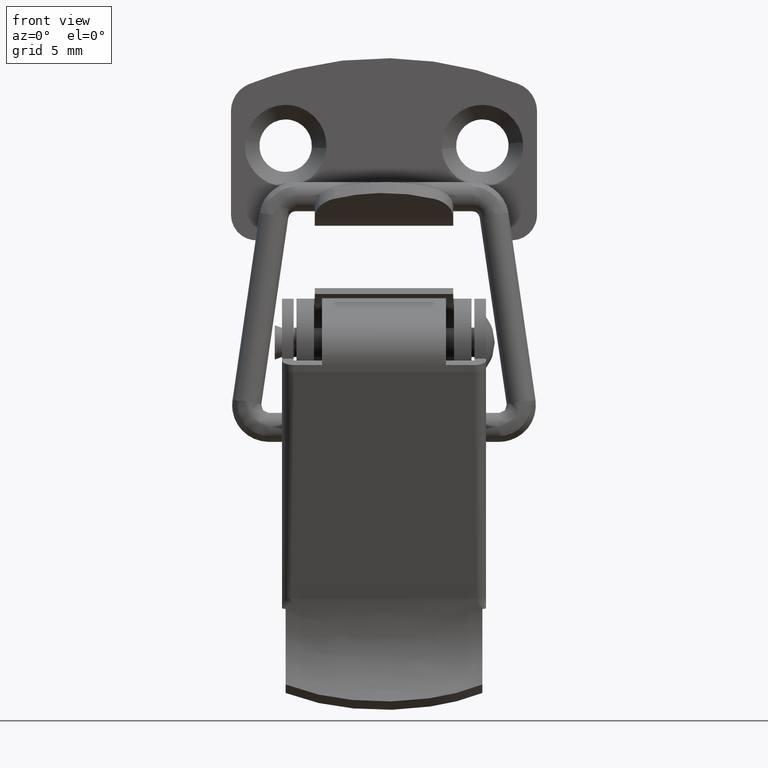
[diagram: clean part render]
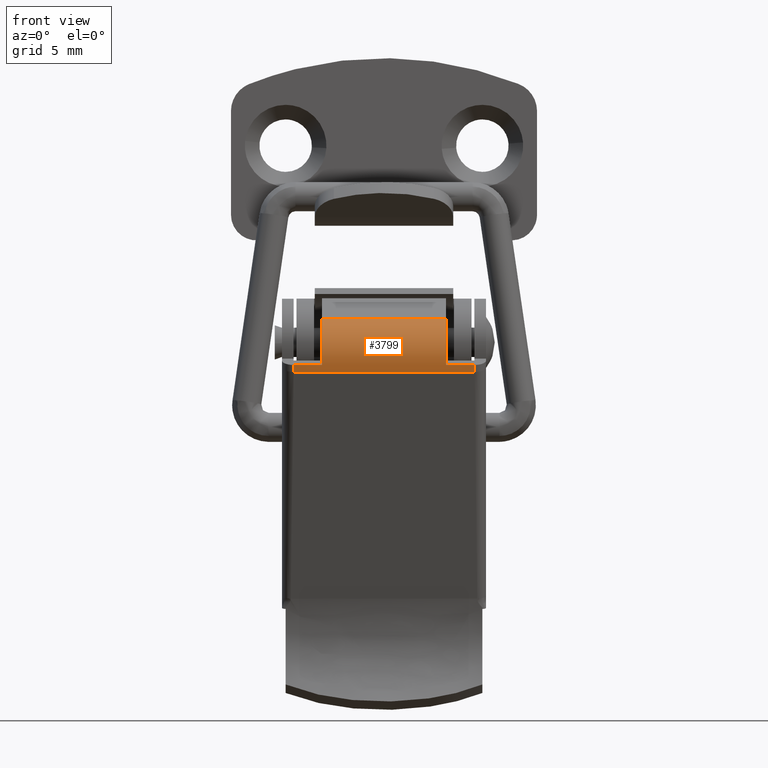
[diagram: same view with one face highlighted and labeled with its STEP entity id]
A machine part, front view. The second image highlights one B-rep face of the part: STEP entity #3799.
In plain terms, the highlighted face is a freeform B-spline surface patch.
Its self-contained STEP definition (entity closure, byte-faithful):
#2981=CARTESIAN_POINT('',(-4.656005322205810,4.250000000000000,-8.387027931961381));
#2982=VERTEX_POINT('',#2981);
#3017=CARTESIAN_POINT('',(-6.355976200046881,4.250000000000000,-11.547739721177900));
#3018=VERTEX_POINT('',#3017);
#3024=CARTESIAN_POINT('',(-4.656005322205807,4.250000000000000,-8.387027931961386));
#3025=CARTESIAN_POINT('',(-6.825346312411479,4.250000000000000,-9.257775939398552));
#3026=CARTESIAN_POINT('',(-6.355976200046852,4.250000000000000,-11.547739721177891));
#3034=(BOUNDED_CURVE()B_SPLINE_CURVE(2,(#3024,#3025,#3026),.UNSPECIFIED.,.F.,.U.)CURVE()GEOMETRIC_REPRESENTATION_ITEM()QUASI_UNIFORM_CURVE()RATIONAL_B_SPLINE_CURVE((1.0,0.767649473578742,1.0))REPRESENTATION_ITEM(''));
#3035=EDGE_CURVE('',#2982,#3018,#3034,.T.);
#3047=CARTESIAN_POINT('',(-4.656005322205810,-4.250000000000000,-8.387027931961381));
#3048=VERTEX_POINT('',#3047);
#3054=CARTESIAN_POINT('',(-6.355976200046881,-4.250000000000000,-11.547739721177900));
#3055=VERTEX_POINT('',#3054);
#3056=CARTESIAN_POINT('',(-4.656005322205807,-4.250000000000000,-8.387027931961386));
#3057=CARTESIAN_POINT('',(-6.825346312411479,-4.250000000000000,-9.257775939398552));
#3058=CARTESIAN_POINT('',(-6.355976200046852,-4.250000000000000,-11.547739721177891));
#3066=(BOUNDED_CURVE()B_SPLINE_CURVE(2,(#3056,#3057,#3058),.UNSPECIFIED.,.F.,.U.)CURVE()GEOMETRIC_REPRESENTATION_ITEM()QUASI_UNIFORM_CURVE()RATIONAL_B_SPLINE_CURVE((1.0,0.767649473578742,1.0))REPRESENTATION_ITEM(''));
#3067=EDGE_CURVE('',#3048,#3055,#3066,.T.);
#3148=CARTESIAN_POINT('',(-4.656005322205810,-4.250000000000000,-8.387027931961381));
#3149=CARTESIAN_POINT('',(-4.656005322205810,4.250000000000000,-8.387027931961381));
#3150=QUASI_UNIFORM_CURVE('',1,(#3148,#3149),.UNSPECIFIED.,.F.,.U.);
#3151=EDGE_CURVE('',#3048,#2982,#3150,.T.);
#3256=CARTESIAN_POINT('',(-6.211491311570910,6.200000000000000,-12.028519842825499));
#3257=VERTEX_POINT('',#3256);
#3321=CARTESIAN_POINT('',(-6.355976200046881,6.200000000000000,-11.547739721177900));
#3322=VERTEX_POINT('',#3321);
#3338=CARTESIAN_POINT('',(-6.355976200046881,6.200000000000000,-11.547739721177900));
#3339=CARTESIAN_POINT('',(-6.322330096325860,6.199999999999983,-11.711892395737090));
#3340=CARTESIAN_POINT('',(-6.273909598592061,6.199999999999983,-11.873013832571250));
#3341=CARTESIAN_POINT('',(-6.211491311570907,6.199999999999983,-12.028519842825521));
#3342=QUASI_UNIFORM_CURVE('',3,(#3338,#3339,#3340,#3341),.UNSPECIFIED.,.F.,.U.);
#3343=EDGE_CURVE('',#3322,#3257,#3342,.T.);
#3447=CARTESIAN_POINT('',(-6.211491311570910,-6.200000000000000,-12.028519842825499));
#3448=VERTEX_POINT('',#3447);
#3508=CARTESIAN_POINT('',(-6.355976200046881,-6.200000000000000,-11.547739721177900));
#3509=VERTEX_POINT('',#3508);
#3520=CARTESIAN_POINT('',(-6.211491311570907,-6.199999999999983,-12.028519842825521));
#3521=CARTESIAN_POINT('',(-6.273909598592652,-6.199999999999983,-11.873013832569780));
#3522=CARTESIAN_POINT('',(-6.322330096326777,-6.199999999999983,-11.711892395734040));
#3523=CARTESIAN_POINT('',(-6.355976200046881,-6.200000000000000,-11.547739721177900));
#3524=QUASI_UNIFORM_CURVE('',3,(#3520,#3521,#3522,#3523),.UNSPECIFIED.,.F.,.U.);
#3525=EDGE_CURVE('',#3448,#3509,#3524,.T.);
#3752=CARTESIAN_POINT('',(-6.211491311570910,-6.200000000000000,-12.028519842825499));
#3753=CARTESIAN_POINT('',(-6.211491311570910,6.200000000000000,-12.028519842825499));
#3754=QUASI_UNIFORM_CURVE('',1,(#3752,#3753),.UNSPECIFIED.,.F.,.U.);
#3755=EDGE_CURVE('',#3448,#3257,#3754,.T.);
#3767=CARTESIAN_POINT('',(-4.574487015898436,-6.510000000000001,-8.355774069694482));
#3768=CARTESIAN_POINT('',(-4.574487015898436,6.517750000000001,-8.355774069694482));
#3769=CARTESIAN_POINT('',(-7.444347702676203,-6.510000000000002,-9.405050446734840));
#3770=CARTESIAN_POINT('',(-7.444347702676203,6.517750000000003,-9.405050446734840));
#3771=CARTESIAN_POINT('',(-6.148939299297263,-6.510000000000001,-12.172539985176270));
#3772=CARTESIAN_POINT('',(-6.148939299297263,6.517750000000001,-12.172539985176270));
#3780=(BOUNDED_SURFACE()B_SPLINE_SURFACE(1,2,((#3767,#3769,#3771),(#3768,#3770,#3772)),.UNSPECIFIED.,.F.,.F.,.U.)B_SPLINE_SURFACE_WITH_KNOTS((2,2),(3,3),(0.0,13.027750000000010),(0.0,4.928117945988535),.UNSPECIFIED.)GEOMETRIC_REPRESENTATION_ITEM()RATIONAL_B_SPLINE_SURFACE(((1.0,0.675590207615660,1.0),(1.0,0.675590207615660,1.0)))REPRESENTATION_ITEM('')SURFACE());
#3781=CARTESIAN_POINT('',(-6.355976200046881,-6.200000000000000,-11.547739721177900));
#3782=CARTESIAN_POINT('',(-6.355976200046881,-4.250000000000000,-11.547739721177900));
#3783=QUASI_UNIFORM_CURVE('',1,(#3781,#3782),.UNSPECIFIED.,.F.,.U.);
#3784=EDGE_CURVE('',#3509,#3055,#3783,.T.);
#3785=ORIENTED_EDGE('',*,*,#3784,.T.);
#3786=ORIENTED_EDGE('',*,*,#3067,.F.);
#3787=ORIENTED_EDGE('',*,*,#3151,.T.);
#3788=ORIENTED_EDGE('',*,*,#3035,.T.);
#3789=CARTESIAN_POINT('',(-6.355976200046881,4.250000000000000,-11.547739721177900));
#3790=CARTESIAN_POINT('',(-6.355976200046881,6.200000000000000,-11.547739721177900));
#3791=QUASI_UNIFORM_CURVE('',1,(#3789,#3790),.UNSPECIFIED.,.F.,.U.);
#3792=EDGE_CURVE('',#3018,#3322,#3791,.T.);
#3793=ORIENTED_EDGE('',*,*,#3792,.T.);
#3794=ORIENTED_EDGE('',*,*,#3343,.T.);
#3795=ORIENTED_EDGE('',*,*,#3755,.F.);
#3796=ORIENTED_EDGE('',*,*,#3525,.T.);
#3797=EDGE_LOOP('',(#3785,#3786,#3787,#3788,#3793,#3794,#3795,#3796));
#3798=FACE_OUTER_BOUND('',#3797,.T.);
#3799=ADVANCED_FACE('',(#3798),#3780,.T.);